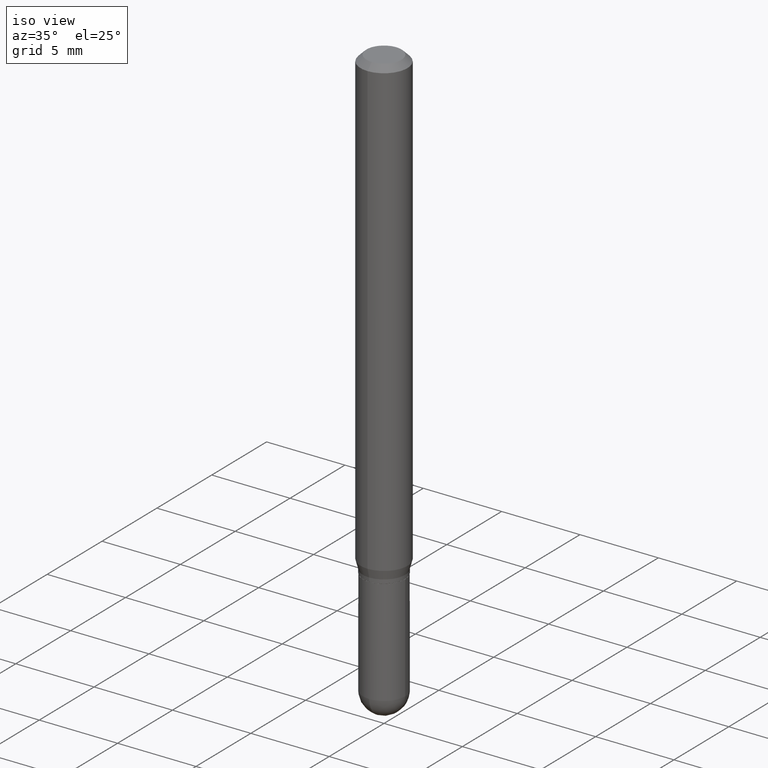
[diagram: clean part render]
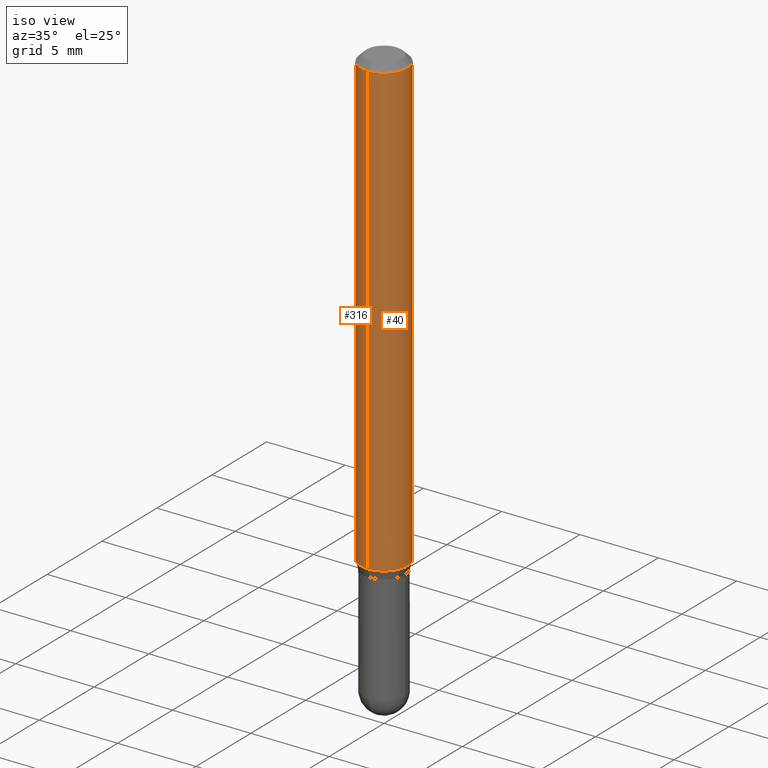
[diagram: same view with one multi-face feature highlighted, each face labeled with its STEP entity id]
A machine part, iso view. The highlighted faces form ONE feature: a constant-radius fillet chain: 2 tangent blend faces with common blend radius 1.4999 mm. The faces share edges in the B-rep.
Their STEP definitions:
[1] entity #316 (Cylinder):
#16 = DIRECTION ( 'NONE',  ( -6.982962677686265922E-15, -1.000000000000000000, 4.626330217890369336E-15 ) ) ;
#21 = CARTESIAN_POINT ( 'NONE',  ( 2.800552248916751632E-29, -3.998308889543198540E-15, -1.145180900235343913 ) ) ;
#22 = CARTESIAN_POINT ( 'NONE',  ( -4.123439461173736383E-16, -0.05905000000000005383, -0.01499999999999981730 ) ) ;
#29 = CARTESIAN_POINT ( 'NONE',  ( 3.668266186164849471E-31, -5.237131821777922315E-17, -0.01500000000000002373 ) ) ;
#39 = CIRCLE ( 'NONE', #172, 0.05904999999999999832 ) ;
#51 = ORIENTED_EDGE ( 'NONE', *, *, #424, .F. ) ;
#59 = DIRECTION ( 'NONE',  ( -2.445510790776562624E-29, 3.491421214518609091E-15, 1.000000000000000000 ) ) ;
#72 = LINE ( 'NONE', #500, #392 ) ;
#77 = VERTEX_POINT ( 'NONE', #413 ) ;
#84 = VERTEX_POINT ( 'NONE', #22 ) ;
#126 = ORIENTED_EDGE ( 'NONE', *, *, #389, .T. ) ;
#144 = DIRECTION ( 'NONE',  ( -6.982962677686265922E-15, -1.000000000000000000, 3.491421214518609486E-15 ) ) ;
#172 = AXIS2_PLACEMENT_3D ( 'NONE', #29, #470, #440 ) ;
#197 = CARTESIAN_POINT ( 'NONE',  ( 4.195754854663390985E-16, 0.05904999999999999832, -2.061684227173238760E-16 ) ) ;
#205 = AXIS2_PLACEMENT_3D ( 'NONE', #21, #59, #16 ) ;
#240 = EDGE_CURVE ( 'NONE', #77, #268, #334, .T. ) ;
#260 = DIRECTION ( 'NONE',  ( -2.445510790776562624E-29, 3.491421214518609091E-15, 1.000000000000000000 ) ) ;
#268 = VERTEX_POINT ( 'NONE', #287 ) ;
#276 = DIRECTION ( 'NONE',  ( -2.445510790776562904E-29, 3.491421214518609091E-15, 1.000000000000000000 ) ) ;
#280 = CARTESIAN_POINT ( 'NONE',  ( 4.195754854663672510E-16, 0.05904999999999994281, -0.01500000000000023016 ) ) ;
#287 = CARTESIAN_POINT ( 'NONE',  ( -4.123439461173460774E-16, -0.05905000000000400207, -1.145180900235343913 ) ) ;
#297 = CARTESIAN_POINT ( 'NONE',  ( 0.000000000000000000, 0.000000000000000000, 0.000000000000000000 ) ) ;
#299 = CYLINDRICAL_SURFACE ( 'NONE', #445, 0.05904999999999999832 ) ;
#302 = DIRECTION ( 'NONE',  ( -2.445510790776562904E-29, 3.491421214518609091E-15, 1.000000000000000000 ) ) ;
#303 = VECTOR ( 'NONE', #276, 39.37007874015748143 ) ;
#316 = ADVANCED_FACE ( 'NONE', ( #467 ), #299, .T. ) ;
#334 = CIRCLE ( 'NONE', #205, 0.05904999999999999832 ) ;
#354 = ORIENTED_EDGE ( 'NONE', *, *, #240, .T. ) ;
#374 = EDGE_LOOP ( 'NONE', ( #485, #354, #126, #51 ) ) ;
#389 = EDGE_CURVE ( 'NONE', #268, #84, #72, .T. ) ;
#392 = VECTOR ( 'NONE', #302, 39.37007874015748143 ) ;
#399 = LINE ( 'NONE', #197, #303 ) ;
#413 = CARTESIAN_POINT ( 'NONE',  ( 4.195754854663670538E-16, 0.05904999999999599458, -1.145180900235344135 ) ) ;
#424 = EDGE_CURVE ( 'NONE', #481, #84, #39, .T. ) ;
#440 = DIRECTION ( 'NONE',  ( -6.982962677686265922E-15, -1.000000000000000000, 3.505890868245046092E-15 ) ) ;
#445 = AXIS2_PLACEMENT_3D ( 'NONE', #297, #260, #144 ) ;
#467 = FACE_OUTER_BOUND ( 'NONE', #374, .T. ) ;
#470 = DIRECTION ( 'NONE',  ( -2.445510790776562624E-29, 3.491421214518609091E-15, 1.000000000000000000 ) ) ;
#480 = EDGE_CURVE ( 'NONE', #77, #481, #399, .T. ) ;
#481 = VERTEX_POINT ( 'NONE', #280 ) ;
#485 = ORIENTED_EDGE ( 'NONE', *, *, #480, .F. ) ;
#500 = CARTESIAN_POINT ( 'NONE',  ( -4.123439461173739834E-16, -0.05904999999999999832, 2.061684227173238760E-16 ) ) ;
[2] entity #40 (Cylinder):
#3 = CARTESIAN_POINT ( 'NONE',  ( 0.000000000000000000, 0.000000000000000000, 0.000000000000000000 ) ) ;
#11 = ORIENTED_EDGE ( 'NONE', *, *, #389, .F. ) ;
#22 = CARTESIAN_POINT ( 'NONE',  ( -4.123439461173736383E-16, -0.05905000000000005383, -0.01499999999999981730 ) ) ;
#25 = AXIS2_PLACEMENT_3D ( 'NONE', #386, #231, #462 ) ;
#40 = ADVANCED_FACE ( 'NONE', ( #358 ), #48, .T. ) ;
#48 = CYLINDRICAL_SURFACE ( 'NONE', #270, 0.05904999999999999832 ) ;
#55 = DIRECTION ( 'NONE',  ( -6.982962677686265922E-15, -1.000000000000000000, 3.491421214518609486E-15 ) ) ;
#72 = LINE ( 'NONE', #500, #392 ) ;
#77 = VERTEX_POINT ( 'NONE', #413 ) ;
#84 = VERTEX_POINT ( 'NONE', #22 ) ;
#95 = EDGE_CURVE ( 'NONE', #84, #481, #444, .T. ) ;
#102 = DIRECTION ( 'NONE',  ( -2.445510790776562624E-29, 3.491421214518609091E-15, 1.000000000000000000 ) ) ;
#116 = EDGE_LOOP ( 'NONE', ( #204, #160, #202, #11 ) ) ;
#119 = DIRECTION ( 'NONE',  ( -2.445510790776562624E-29, 3.491421214518609091E-15, 1.000000000000000000 ) ) ;
#160 = ORIENTED_EDGE ( 'NONE', *, *, #480, .T. ) ;
#197 = CARTESIAN_POINT ( 'NONE',  ( 4.195754854663390985E-16, 0.05904999999999999832, -2.061684227173238760E-16 ) ) ;
#202 = ORIENTED_EDGE ( 'NONE', *, *, #95, .F. ) ;
#204 = ORIENTED_EDGE ( 'NONE', *, *, #293, .T. ) ;
#231 = DIRECTION ( 'NONE',  ( -2.445510790776562624E-29, 3.491421214518609091E-15, 1.000000000000000000 ) ) ;
#261 = DIRECTION ( 'NONE',  ( -6.982962677686265922E-15, -1.000000000000000000, 3.505890868245046092E-15 ) ) ;
#268 = VERTEX_POINT ( 'NONE', #287 ) ;
#270 = AXIS2_PLACEMENT_3D ( 'NONE', #3, #119, #55 ) ;
#276 = DIRECTION ( 'NONE',  ( -2.445510790776562904E-29, 3.491421214518609091E-15, 1.000000000000000000 ) ) ;
#280 = CARTESIAN_POINT ( 'NONE',  ( 4.195754854663672510E-16, 0.05904999999999994281, -0.01500000000000023016 ) ) ;
#287 = CARTESIAN_POINT ( 'NONE',  ( -4.123439461173460774E-16, -0.05905000000000400207, -1.145180900235343913 ) ) ;
#293 = EDGE_CURVE ( 'NONE', #268, #77, #492, .T. ) ;
#302 = DIRECTION ( 'NONE',  ( -2.445510790776562904E-29, 3.491421214518609091E-15, 1.000000000000000000 ) ) ;
#303 = VECTOR ( 'NONE', #276, 39.37007874015748143 ) ;
#349 = AXIS2_PLACEMENT_3D ( 'NONE', #466, #102, #261 ) ;
#358 = FACE_OUTER_BOUND ( 'NONE', #116, .T. ) ;
#386 = CARTESIAN_POINT ( 'NONE',  ( 2.800552248916751632E-29, -3.998308889543198540E-15, -1.145180900235343913 ) ) ;
#389 = EDGE_CURVE ( 'NONE', #268, #84, #72, .T. ) ;
#392 = VECTOR ( 'NONE', #302, 39.37007874015748143 ) ;
#399 = LINE ( 'NONE', #197, #303 ) ;
#413 = CARTESIAN_POINT ( 'NONE',  ( 4.195754854663670538E-16, 0.05904999999999599458, -1.145180900235344135 ) ) ;
#444 = CIRCLE ( 'NONE', #349, 0.05904999999999999832 ) ;
#462 = DIRECTION ( 'NONE',  ( -6.982962677686265922E-15, -1.000000000000000000, 4.626330217890369336E-15 ) ) ;
#466 = CARTESIAN_POINT ( 'NONE',  ( 3.668266186164849471E-31, -5.237131821777922315E-17, -0.01500000000000002373 ) ) ;
#480 = EDGE_CURVE ( 'NONE', #77, #481, #399, .T. ) ;
#481 = VERTEX_POINT ( 'NONE', #280 ) ;
#492 = CIRCLE ( 'NONE', #25, 0.05904999999999999832 ) ;
#500 = CARTESIAN_POINT ( 'NONE',  ( -4.123439461173739834E-16, -0.05904999999999999832, 2.061684227173238760E-16 ) ) ;